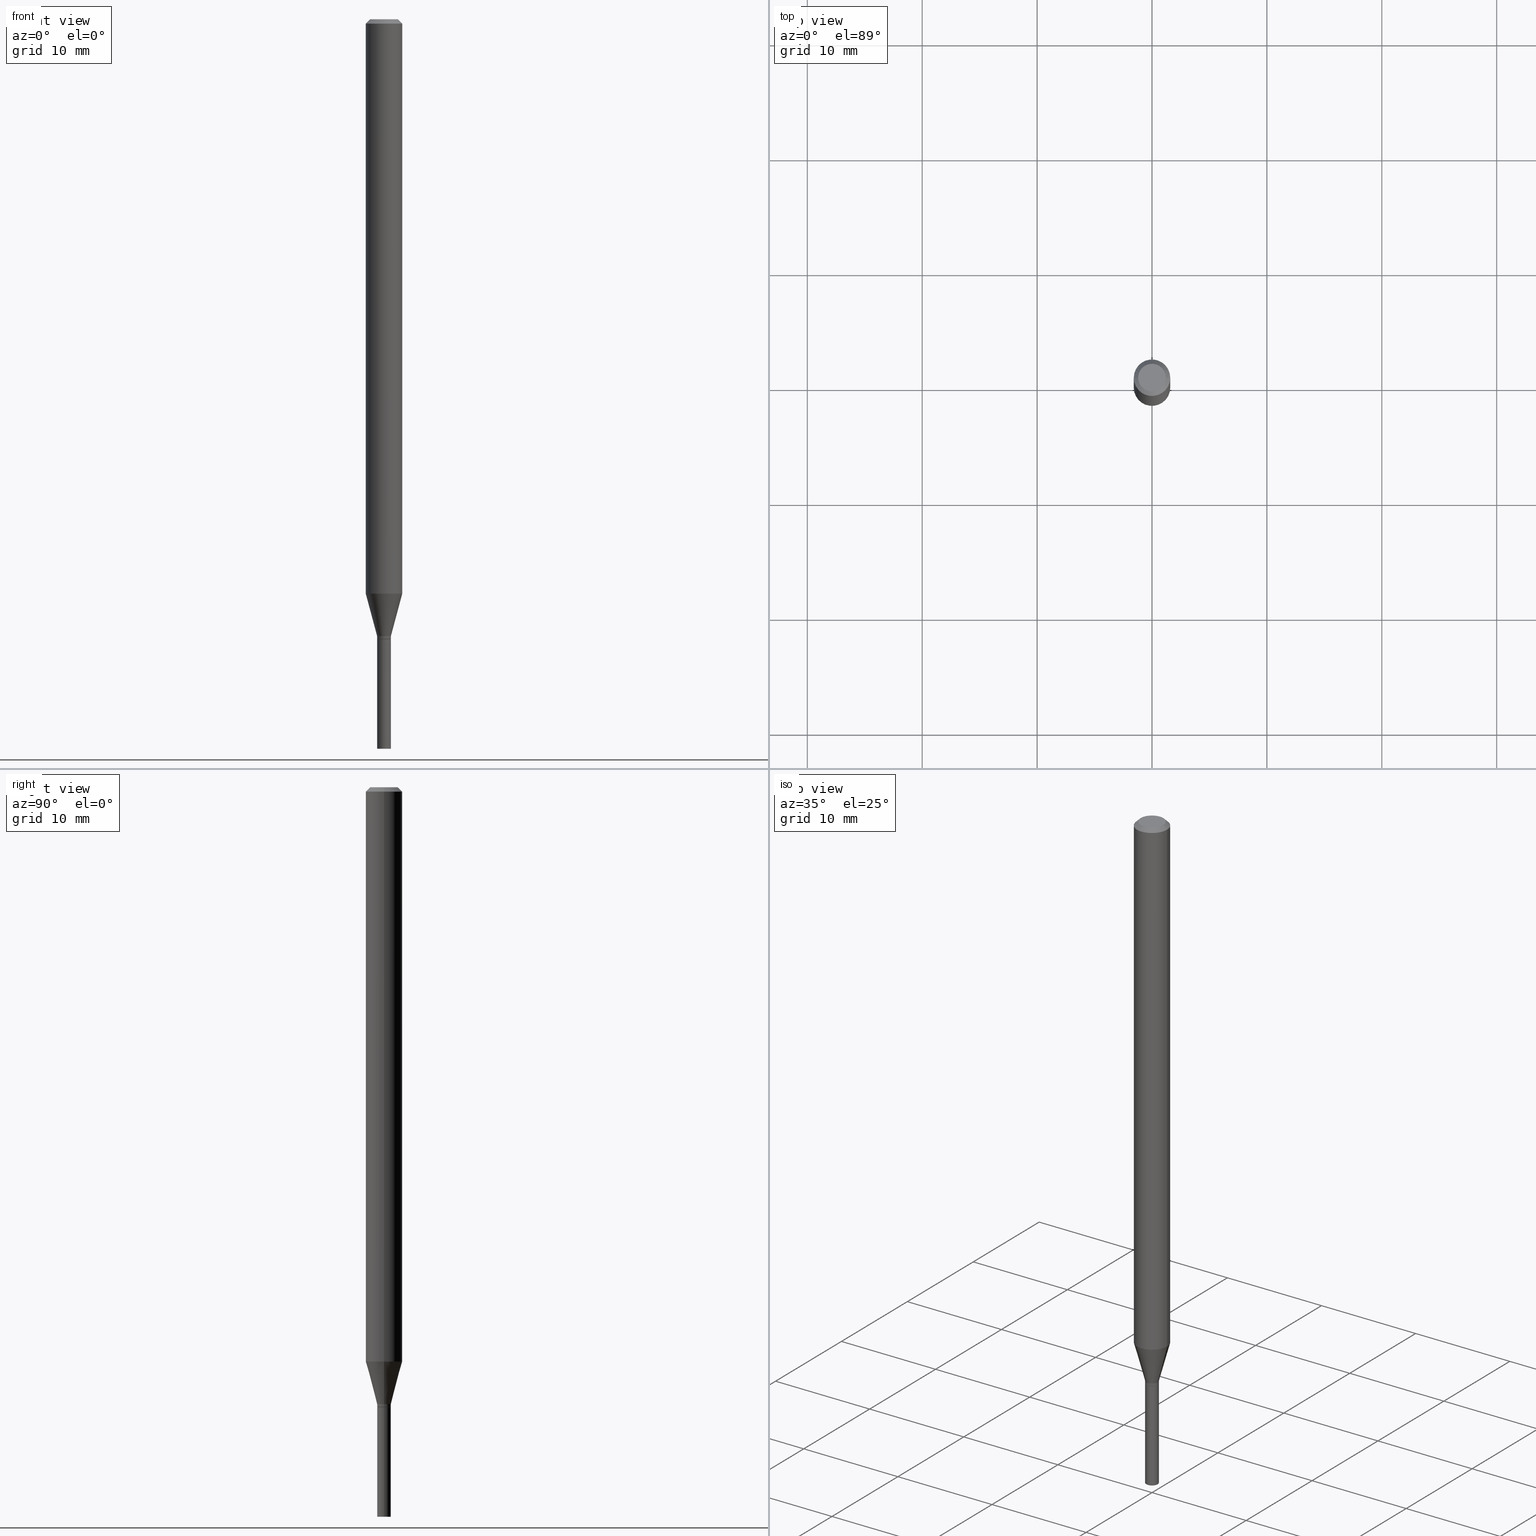
[diagram: canonical four-view strip — front | top / right | iso, engineering-drawing reading convention]
A machine part, canonical four-view strip (front | top / right | iso — engineering-drawing reading convention). The complete STEP part file that produces these views, byte-faithful:
ISO-10303-21;
HEADER;
FILE_DESCRIPTION (( 'STEP AP203' ),
    '1' );
FILE_NAME ('00620.STEP',
    '2024-03-19T22:06:02',
    ( '' ),
    ( '' ),
    'SwSTEP 2.0',
    'SolidWorks 2023',
    '' );
FILE_SCHEMA (( 'CONFIG_CONTROL_DESIGN' ));
ENDSEC;

DATA;
#1 = VERTEX_POINT ( 'NONE', #337 ) ;
#2 = ORIENTED_EDGE ( 'NONE', *, *, #364, .T. ) ;
#3 = PERSON_AND_ORGANIZATION_ROLE ( 'creator' ) ;
#4 = LENGTH_MEASURE_WITH_UNIT ( LENGTH_MEASURE( 0.02539999999999999897 ), #108 );
#5 = ORIENTED_EDGE ( 'NONE', *, *, #292, .T. ) ;
#6 = VERTEX_POINT ( 'NONE', #189 ) ;
#7 = DIRECTION ( 'NONE',  ( 1.000000000000000000, -6.982962677686247778E-15, 0.000000000000000000 ) ) ;
#8 = CIRCLE ( 'NONE', #387, 0.02299999999999999961 ) ;
#9 = APPROVAL_PERSON_ORGANIZATION ( #389, #35, #360 ) ;
#10 = DIRECTION ( 'NONE',  ( -2.445468806185136597E-29, 3.491481338843145583E-15, 1.000000000000000000 ) ) ;
#11 = DIRECTION ( 'NONE',  ( 1.000000000000000000, -6.982962677686267499E-15, 4.876176775795936353E-29 ) ) ;
#12 = DIRECTION ( 'NONE',  ( -2.445468806185136597E-29, 3.491481338843145583E-15, 1.000000000000000000 ) ) ;
#13 = EDGE_CURVE ( 'NONE', #1, #6, #350, .T. ) ;
#14 = AXIS2_PLACEMENT_3D ( 'NONE', #244, #352, #25 ) ;
#15 = AXIS2_PLACEMENT_3D ( 'NONE', #233, #340, #237 ) ;
#16 = DATE_AND_TIME ( #30, #179 ) ;
#17 = COORDINATED_UNIVERSAL_TIME_OFFSET ( 5, 0, .BEHIND. ) ;
#18 = COORDINATED_UNIVERSAL_TIME_OFFSET ( 5, 0, .BEHIND. ) ;
#19 = ORIENTED_EDGE ( 'NONE', *, *, #411, .T. ) ;
#20 = PERSON_AND_ORGANIZATION_ROLE ( 'classification_officer' ) ;
#21 = DIRECTION ( 'NONE',  ( -2.438088387897960049E-29, 3.491481338843145188E-15, 1.000000000000000000 ) ) ;
#22 = CC_DESIGN_PERSON_AND_ORGANIZATION_ASSIGNMENT ( #239, #373, ( #216 ) ) ;
#23 = ORIENTED_EDGE ( 'NONE', *, *, #13, .T. ) ;
#24 = ORIENTED_EDGE ( 'NONE', *, *, #222, .T. ) ;
#25 = DIRECTION ( 'NONE',  ( 1.000000000000000000, -6.982962677686265922E-15, 4.876176775795935793E-29 ) ) ;
#26 = DIRECTION ( 'NONE',  ( -0.7071067811865361374, 2.468850131082138337E-15, -0.7071067811865587860 ) ) ;
#27 = VERTEX_POINT ( 'NONE', #438 ) ;
#28 = DIRECTION ( 'NONE',  ( 1.000000000000000000, -6.982962677686253300E-15, 0.000000000000000000 ) ) ;
#29 = VERTEX_POINT ( 'NONE', #299 ) ;
#30 = CALENDAR_DATE ( 2024, 19, 3 ) ;
#31 = ORIENTED_EDGE ( 'NONE', *, *, #124, .F. ) ;
#32 = CIRCLE ( 'NONE', #90, 0.02350000000000000352 ) ;
#33 = DIRECTION ( 'NONE',  ( 2.438088387897960049E-29, -3.491481338843145188E-15, -1.000000000000000000 ) ) ;
#34 = DIRECTION ( 'NONE',  ( 1.000000000000000000, -6.982962677686269866E-15, 0.000000000000000000 ) ) ;
#35 = APPROVAL ( #265, 'UNSPECIFIED' ) ;
#36 = DIRECTION ( 'NONE',  ( -2.445468806185136597E-29, 3.491481338843145583E-15, 1.000000000000000000 ) ) ;
#37 = CARTESIAN_POINT ( 'NONE',  ( 0.02349999999999965311, -7.578260245959044393E-15, -2.123500000000000387 ) ) ;
#38 = ORIENTED_EDGE ( 'NONE', *, *, #96, .F. ) ;
#39 = DIRECTION ( 'NONE',  ( -2.445468806185136597E-29, 3.491481338843145583E-15, 1.000000000000000000 ) ) ;
#40 = EDGE_LOOP ( 'NONE', ( #31, #93, #227, #346 ) ) ;
#41 = APPROVAL_ROLE ( '' ) ;
#42 = CARTESIAN_POINT ( 'NONE',  ( 0.02350000000000019781, -7.545091173240038191E-15, -2.114000000000000323 ) ) ;
#43 = CYLINDRICAL_SURFACE ( 'NONE', #331, 0.02349999999999992373 ) ;
#44 = DIRECTION ( 'NONE',  ( 0.000000000000000000, 0.000000000000000000, 1.000000000000000000 ) ) ;
#45 = EDGE_CURVE ( 'NONE', #257, #303, #440, .T. ) ;
#46 = CARTESIAN_POINT ( 'NONE',  ( 5.194175744337230786E-29, -7.415906363702842194E-15, -2.124000000000000554 ) ) ;
#47 = AXIS2_PLACEMENT_3D ( 'NONE', #258, #388, #34 ) ;
#48 = DIRECTION ( 'NONE',  ( 0.2588190451025217942, 1.565188264969618812E-15, 0.9659258262890679791 ) ) ;
#49 = PRODUCT_DEFINITION ( 'UNKNOWN', '', #216, #313 ) ;
#50 = DIRECTION ( 'NONE',  ( 1.000000000000000000, -6.982962677686267499E-15, 4.852736867747366768E-29 ) ) ;
#51 = DIRECTION ( 'NONE',  ( -2.445468806185136597E-29, 3.491481338843145583E-15, 1.000000000000000000 ) ) ;
#52 = AXIS2_PLACEMENT_3D ( 'NONE', #116, #266, #366 ) ;
#53 = DIRECTION ( 'NONE',  ( 1.000000000000000000, -6.982962677686228056E-15, 0.000000000000000000 ) ) ;
#54 = APPROVAL_PERSON_ORGANIZATION ( #225, #193, #41 ) ;
#55 = LINE ( 'NONE', #162, #259 ) ;
#56 = EDGE_LOOP ( 'NONE', ( #84, #231, #310, #367 ) ) ;
#57 = EDGE_CURVE ( 'NONE', #163, #102, #321, .T. ) ;
#58 = CARTESIAN_POINT ( 'NONE',  ( 0.06250000000000000000, -4.888073874380388472E-16, -0.01499999999999999944 ) ) ;
#59 = ORIENTED_EDGE ( 'NONE', *, *, #264, .F. ) ;
#60 = DIRECTION ( 'NONE',  ( 1.000000000000000000, -6.982962677686265922E-15, 4.876176775795935793E-29 ) ) ;
#61 = VECTOR ( 'NONE', #268, 39.37007874015748143 ) ;
#62 = CARTESIAN_POINT ( 'NONE',  ( 5.194175744337230786E-29, -7.415906363702842194E-15, -2.124000000000000110 ) ) ;
#63 = EDGE_CURVE ( 'NONE', #29, #303, #273, .T. ) ;
#64 = CARTESIAN_POINT ( 'NONE',  ( 0.02349999999999992373, -1.640996229256267589E-16, 1.145901542312041261E-30 ) ) ;
#65 = FACE_OUTER_BOUND ( 'NONE', #40, .T. ) ;
#66 = CYLINDRICAL_SURFACE ( 'NONE', #203, 0.06250000000000000000 ) ;
#67 = AXIS2_PLACEMENT_3D ( 'NONE', #75, #109, #211 ) ;
#68 = CONICAL_SURFACE ( 'NONE', #15, 0.06250000000000000000, 0.7853981633974322918 ) ;
#69 = EDGE_CURVE ( 'NONE', #246, #235, #463, .T. ) ;
#70 = APPROVAL_STATUS ( 'not_yet_approved' ) ;
#71 = LINE ( 'NONE', #459, #355 ) ;
#72 = EDGE_LOOP ( 'NONE', ( #95, #324, #19, #294 ) ) ;
#73 = DIRECTION ( 'NONE',  ( 0.7071067811865361374, -7.319954787623216602E-15, -0.7071067811865587860 ) ) ;
#74 = CARTESIAN_POINT ( 'NONE',  ( -0.06250000000000000000, 4.440892098500626162E-16, -3.074334431409316114E-30 ) ) ;
#75 = CARTESIAN_POINT ( 'NONE',  ( 3.316907271900976096E-16, 0.04749999999999999362, 7.524325248980341519E-17 ) ) ;
#76 = CARTESIAN_POINT ( 'NONE',  ( 4.813783116788080428E-29, -6.872806506055007180E-15, -1.968450018504815269 ) ) ;
#77 = ADVANCED_FACE ( 'NONE', ( #82 ), #43, .T. ) ;
#78 = VERTEX_POINT ( 'NONE', #343 ) ;
#79 = CONICAL_SURFACE ( 'NONE', #134, 0.02299999999999999961, 0.7853981633969275844 ) ;
#80 = APPLICATION_CONTEXT ( 'configuration controlled 3d designs of mechanical parts and assemblies' ) ;
#81 = ADVANCED_FACE ( 'NONE', ( #375 ), #401, .T. ) ;
#82 = FACE_OUTER_BOUND ( 'NONE', #202, .T. ) ;
#83 =( CONVERSION_BASED_UNIT ( 'INCH', #4 ) LENGTH_UNIT ( ) NAMED_UNIT ( #152 ) );
#84 = ORIENTED_EDGE ( 'NONE', *, *, #286, .T. ) ;
#85 = VERTEX_POINT ( 'NONE', #192 ) ;
#86 = AXIS2_PLACEMENT_3D ( 'NONE', #186, #10, #28 ) ;
#87 = CARTESIAN_POINT ( 'NONE',  ( 3.668203209277705088E-31, -5.237222008264718399E-17, -0.01499999999999999944 ) ) ;
#88 = APPROVAL_DATE_TIME ( #16, #301 ) ;
#89 = DIRECTION ( 'NONE',  ( 1.000000000000000000, 0.000000000000000000, 0.000000000000000000 ) ) ;
#90 = AXIS2_PLACEMENT_3D ( 'NONE', #391, #36, #138 ) ;
#91 = CARTESIAN_POINT ( 'NONE',  ( 5.192953009934137985E-29, -7.414160623033419902E-15, -2.123500000000000387 ) ) ;
#92 = APPROVAL_DATE_TIME ( #415, #35 ) ;
#93 = ORIENTED_EDGE ( 'NONE', *, *, #160, .T. ) ;
#94 = CALENDAR_DATE ( 2024, 19, 3 ) ;
#95 = ORIENTED_EDGE ( 'NONE', *, *, #63, .F. ) ;
#96 = EDGE_CURVE ( 'NONE', #6, #1, #143, .T. ) ;
#97 = DIRECTION ( 'NONE',  ( -2.445468806185136597E-29, 3.491481338843145583E-15, 1.000000000000000000 ) ) ;
#98 = VECTOR ( 'NONE', #73, 39.37007874015748854 ) ;
#99 = ORIENTED_EDGE ( 'NONE', *, *, #13, .F. ) ;
#100 = ORIENTED_EDGE ( 'NONE', *, *, #250, .F. ) ;
#101 = DIRECTION ( 'NONE',  ( 1.000000000000000000, -6.982962677686267499E-15, 4.876176775795936353E-29 ) ) ;
#102 = VERTEX_POINT ( 'NONE', #58 ) ;
#103 = ORIENTED_EDGE ( 'NONE', *, *, #124, .T. ) ;
#104 = FACE_OUTER_BOUND ( 'NONE', #287, .T. ) ;
#105 = CIRCLE ( 'NONE', #285, 0.02350000000000000352 ) ;
#106 = ADVANCED_FACE ( 'NONE', ( #200 ), #153, .T. ) ;
#107 = DIRECTION ( 'NONE',  ( -1.000000000000000000, 6.982962677686265922E-15, -4.876176775795935793E-29 ) ) ;
#108 =( LENGTH_UNIT ( ) NAMED_UNIT ( * ) SI_UNIT ( $, .METRE. ) );
#109 = DIRECTION ( 'NONE',  ( 2.438088387897960049E-29, -3.491481338843145188E-15, -1.000000000000000000 ) ) ;
#110 = EDGE_LOOP ( 'NONE', ( #451, #453 ) ) ;
#111 = ORIENTED_EDGE ( 'NONE', *, *, #382, .T. ) ;
#112 = CC_DESIGN_DATE_AND_TIME_ASSIGNMENT ( #430, #135, ( #49 ) ) ;
#113 = FACE_OUTER_BOUND ( 'NONE', #260, .T. ) ;
#114 = CARTESIAN_POINT ( 'NONE',  ( -0.02350000000000019781, -7.214014007410784881E-15, -2.114000000000000323 ) ) ;
#115 = CIRCLE ( 'NONE', #434, 0.02349999999999965311 ) ;
#116 = CARTESIAN_POINT ( 'NONE',  ( 4.813783116788080428E-29, -6.872806506055007180E-15, -1.968450018504815269 ) ) ;
#117 = CC_DESIGN_PERSON_AND_ORGANIZATION_ASSIGNMENT ( #444, #20, ( #119 ) ) ;
#118 = CONICAL_SURFACE ( 'NONE', #381, 0.02299999999999999961, 0.7853981633969275844 ) ;
#119 = SECURITY_CLASSIFICATION ( '', '', #245 ) ;
#120 = DIRECTION ( 'NONE',  ( 1.000000000000000000, -6.982962677686253300E-15, 0.000000000000000000 ) ) ;
#121 =( NAMED_UNIT ( * ) SI_UNIT ( $, .STERADIAN. ) SOLID_ANGLE_UNIT ( ) );
#122 = CARTESIAN_POINT ( 'NONE',  ( 6.113672015462842613E-29, -8.728703347107864943E-15, -2.500000000000000000 ) ) ;
#123 = CARTESIAN_POINT ( 'NONE',  ( 5.194175744337230786E-29, -7.415906363702842194E-15, -2.124000000000000554 ) ) ;
#124 = EDGE_CURVE ( 'NONE', #303, #163, #281, .T. ) ;
#125 = PERSON_AND_ORGANIZATION ( #236, #414 ) ;
#126 = EDGE_LOOP ( 'NONE', ( #383, #111, #2, #433 ) ) ;
#127 = AXIS2_PLACEMENT_3D ( 'NONE', #460, #39, #137 ) ;
#128 = AXIS2_PLACEMENT_3D ( 'NONE', #314, #156, #120 ) ;
#129 = DIRECTION ( 'NONE',  ( 1.000000000000000000, -6.982962677686249356E-15, 0.000000000000000000 ) ) ;
#130 = ORIENTED_EDGE ( 'NONE', *, *, #222, .F. ) ;
#131 = DIRECTION ( 'NONE',  ( 1.000000000000000000, -6.982962677686265922E-15, 4.876176775795935793E-29 ) ) ;
#132 = ADVANCED_FACE ( 'NONE', ( #410 ), #118, .T. ) ;
#133 = CARTESIAN_POINT ( 'NONE',  ( 3.668203209277705088E-31, -5.237222008264718399E-17, -0.01499999999999999944 ) ) ;
#134 = AXIS2_PLACEMENT_3D ( 'NONE', #465, #399, #139 ) ;
#135 = DATE_TIME_ROLE ( 'creation_date' ) ;
#136 = ORIENTED_EDGE ( 'NONE', *, *, #69, .T. ) ;
#137 = DIRECTION ( 'NONE',  ( 1.000000000000000000, -6.982962677686265922E-15, 4.876176775795935793E-29 ) ) ;
#138 = DIRECTION ( 'NONE',  ( 1.000000000000000000, -6.982962677686228056E-15, 0.000000000000000000 ) ) ;
#139 = DIRECTION ( 'NONE',  ( 1.000000000000000000, -6.982962677686247778E-15, 0.000000000000000000 ) ) ;
#140 = EDGE_CURVE ( 'NONE', #257, #102, #395, .T. ) ;
#141 = CARTESIAN_POINT ( 'NONE',  ( 0.000000000000000000, 0.000000000000000000, 0.000000000000000000 ) ) ;
#142 = UNCERTAINTY_MEASURE_WITH_UNIT (LENGTH_MEASURE( 1.000000000000000082E-05 ), #83, 'distance_accuracy_value', 'NONE');
#143 = CIRCLE ( 'NONE', #408, 0.04749999999999999362 ) ;
#144 = LOCAL_TIME ( 18, 6, 2.000000000000000000, #436 ) ;
#145 = ORIENTED_EDGE ( 'NONE', *, *, #380, .T. ) ;
#146 = LINE ( 'NONE', #393, #98 ) ;
#147 = DIRECTION ( 'NONE',  ( 1.000000000000000000, -6.982962677686267499E-15, 4.852736867747366768E-29 ) ) ;
#148 = FACE_OUTER_BOUND ( 'NONE', #347, .T. ) ;
#149 = PRODUCT_RELATED_PRODUCT_CATEGORY ( 'detail', '', ( #210 ) ) ;
#150 = ORIENTED_EDGE ( 'NONE', *, *, #57, .T. ) ;
#151 = DIRECTION ( 'NONE',  ( -2.445468806185136597E-29, 3.491481338843145583E-15, 1.000000000000000000 ) ) ;
#152 = DIMENSIONAL_EXPONENTS ( 1.000000000000000000, 0.000000000000000000, 0.000000000000000000, 0.000000000000000000, 0.000000000000000000, 0.000000000000000000, 0.000000000000000000 ) ;
#153 = CONICAL_SURFACE ( 'NONE', #128, 0.02350000000000019781, 0.2617993877991505181 ) ;
#154 = AXIS2_PLACEMENT_3D ( 'NONE', #371, #44, #89 ) ;
#155 = EDGE_LOOP ( 'NONE', ( #136, #305, #247, #377 ) ) ;
#156 = DIRECTION ( 'NONE',  ( -2.445468806185136597E-29, 3.491481338843145583E-15, 1.000000000000000000 ) ) ;
#157 = DIRECTION ( 'NONE',  ( 1.000000000000000000, -6.982962677686249356E-15, 0.000000000000000000 ) ) ;
#158 = AXIS2_PLACEMENT_3D ( 'NONE', #206, #167, #316 ) ;
#159 = CIRCLE ( 'NONE', #455, 0.02350000000000019781 ) ;
#160 = EDGE_CURVE ( 'NONE', #303, #257, #194, .T. ) ;
#161 = CARTESIAN_POINT ( 'NONE',  ( 0.000000000000000000, 0.000000000000000000, 0.000000000000000000 ) ) ;
#162 = CARTESIAN_POINT ( 'NONE',  ( -0.06250000000000000000, 3.840629472727444916E-16, -0.01499999999999999944 ) ) ;
#163 = VERTEX_POINT ( 'NONE', #322 ) ;
#164 = VECTOR ( 'NONE', #48, 39.37007874015748143 ) ;
#165 = DIRECTION ( 'NONE',  ( -2.445468806185136597E-29, 3.491481338843145583E-15, 1.000000000000000000 ) ) ;
#166 = ORIENTED_EDGE ( 'NONE', *, *, #219, .T. ) ;
#167 = DIRECTION ( 'NONE',  ( -2.445468806185136597E-29, 3.491481338843145583E-15, 1.000000000000000000 ) ) ;
#168 = EDGE_CURVE ( 'NONE', #240, #421, #295, .T. ) ;
#169 = CARTESIAN_POINT ( 'NONE',  ( -0.06250000000000000000, -6.428717296204944564E-15, -1.968450018504815269 ) ) ;
#170 = AXIS2_PLACEMENT_3D ( 'NONE', #46, #187, #7 ) ;
#171 = DIRECTION ( 'NONE',  ( 1.000000000000000000, -6.982962677686266711E-15, 4.876176775795935793E-29 ) ) ;
#172 = ADVANCED_FACE ( 'NONE', ( #65 ), #221, .T. ) ;
#173 = DIRECTION ( 'NONE',  ( -2.445468806185136597E-29, 3.491481338843145583E-15, 1.000000000000000000 ) ) ;
#174 = CARTESIAN_POINT ( 'NONE',  ( -0.02299999999999999961, -7.249832307303909383E-15, -2.124000000000000554 ) ) ;
#175 = DIRECTION ( 'NONE',  ( -2.445468806185136597E-29, 3.491481338843145583E-15, 1.000000000000000000 ) ) ;
#176 = DIRECTION ( 'NONE',  ( -2.445468806185136877E-29, 3.491481338843145188E-15, 1.000000000000000000 ) ) ;
#177 = DIRECTION ( 'NONE',  ( -2.445468806185136877E-29, 3.491481338843145188E-15, 1.000000000000000000 ) ) ;
#178 = VECTOR ( 'NONE', #176, 39.37007874015748143 ) ;
#179 = LOCAL_TIME ( 18, 6, 2.000000000000000000, #354 ) ;
#180 = VERTEX_POINT ( 'NONE', #362 ) ;
#181 = DIRECTION ( 'NONE',  ( -2.445468806185136597E-29, 3.491481338843145583E-15, 1.000000000000000000 ) ) ;
#182 = EDGE_LOOP ( 'NONE', ( #100, #99, #328, #150 ) ) ;
#183 = CYLINDRICAL_SURFACE ( 'NONE', #226, 0.02350000000000000352 ) ;
#184 = LINE ( 'NONE', #406, #363 ) ;
#185 = AXIS2_PLACEMENT_3D ( 'NONE', #329, #462, #101 ) ;
#186 = CARTESIAN_POINT ( 'NONE',  ( 5.169721056275379241E-29, -7.380991550314410545E-15, -2.114000000000000323 ) ) ;
#187 = DIRECTION ( 'NONE',  ( -2.445468806185136597E-29, 3.491481338843145583E-15, 1.000000000000000000 ) ) ;
#188 = ADVANCED_FACE ( 'NONE', ( #424 ), #213, .T. ) ;
#189 = CARTESIAN_POINT ( 'NONE',  ( 0.04749999999999999362, -4.035134999187569748E-16, 4.821772321697081624E-16 ) ) ;
#190 = ADVANCED_FACE ( 'NONE', ( #148 ), #79, .T. ) ;
#191 = SHAPE_DEFINITION_REPRESENTATION ( #284, #327 ) ;
#192 = CARTESIAN_POINT ( 'NONE',  ( -0.02349999999999965311, -7.247183080129798971E-15, -2.123500000000000387 ) ) ;
#193 = APPROVAL ( #70, 'UNSPECIFIED' ) ;
#194 = CIRCLE ( 'NONE', #215, 0.06250000000000000000 ) ;
#195 = CC_DESIGN_APPROVAL ( #193, ( #49 ) ) ;
#196 = EDGE_LOOP ( 'NONE', ( #370, #145, #263, #130 ) ) ;
#197 = PERSON_AND_ORGANIZATION ( #236, #414 ) ;
#198 = ORIENTED_EDGE ( 'NONE', *, *, #140, .F. ) ;
#199 = EDGE_CURVE ( 'NONE', #85, #29, #288, .T. ) ;
#200 = FACE_OUTER_BOUND ( 'NONE', #72, .T. ) ;
#201 = ORIENTED_EDGE ( 'NONE', *, *, #278, .F. ) ;
#202 = EDGE_LOOP ( 'NONE', ( #445, #419, #208, #351 ) ) ;
#203 = AXIS2_PLACEMENT_3D ( 'NONE', #214, #173, #224 ) ;
#204 = FACE_OUTER_BOUND ( 'NONE', #317, .T. ) ;
#205 = PERSON_AND_ORGANIZATION ( #236, #414 ) ;
#206 = CARTESIAN_POINT ( 'NONE',  ( 5.169721056275379241E-29, -7.380991550314410545E-15, -2.114000000000000323 ) ) ;
#207 = DIRECTION ( 'NONE',  ( 1.000000000000000000, -6.982962677686266711E-15, 0.000000000000000000 ) ) ;
#208 = ORIENTED_EDGE ( 'NONE', *, *, #286, .F. ) ;
#209 = FACE_OUTER_BOUND ( 'NONE', #349, .T. ) ;
#210 = PRODUCT ( '00620', '00620', '', ( #277 ) ) ;
#211 = DIRECTION ( 'NONE',  ( -1.000000000000000000, 6.982962677686265922E-15, -4.876176775795935793E-29 ) ) ;
#212 = ADVANCED_FACE ( 'NONE', ( #104 ), #228, .F. ) ;
#213 = CYLINDRICAL_SURFACE ( 'NONE', #127, 0.02350000000000000352 ) ;
#214 = CARTESIAN_POINT ( 'NONE',  ( 0.000000000000000000, 0.000000000000000000, 0.000000000000000000 ) ) ;
#215 = AXIS2_PLACEMENT_3D ( 'NONE', #76, #181, #330 ) ;
#216 = PRODUCT_DEFINITION_FORMATION_WITH_SPECIFIED_SOURCE ( 'ANY', '', #210, .NOT_KNOWN. ) ;
#217 = DIRECTION ( 'NONE',  ( -2.445468806185136877E-29, 3.491481338843145188E-15, 1.000000000000000000 ) ) ;
#218 = CARTESIAN_POINT ( 'NONE',  ( -0.02350000000000000352, 1.669775429036235687E-16, -1.155949746209903035E-30 ) ) ;
#219 = EDGE_CURVE ( 'NONE', #27, #78, #458, .T. ) ;
#220 = ORIENTED_EDGE ( 'NONE', *, *, #45, .T. ) ;
#221 = CYLINDRICAL_SURFACE ( 'NONE', #344, 0.06250000000000000000 ) ;
#222 = EDGE_CURVE ( 'NONE', #78, #421, #267, .T. ) ;
#223 = AXIS2_PLACEMENT_3D ( 'NONE', #62, #450, #384 ) ;
#224 = DIRECTION ( 'NONE',  ( 1.000000000000000000, -6.982962677686266711E-15, 4.876176775795935793E-29 ) ) ;
#225 = PERSON_AND_ORGANIZATION ( #236, #414 ) ;
#226 = AXIS2_PLACEMENT_3D ( 'NONE', #161, #441, #60 ) ;
#227 = ORIENTED_EDGE ( 'NONE', *, *, #140, .T. ) ;
#228 = PLANE ( 'NONE',  #452 ) ;
#229 = ORIENTED_EDGE ( 'NONE', *, *, #250, .T. ) ;
#230 = DIRECTION ( 'NONE',  ( 1.000000000000000000, -6.982962677686253300E-15, 0.000000000000000000 ) ) ;
#231 = ORIENTED_EDGE ( 'NONE', *, *, #63, .T. ) ;
#232 = DIRECTION ( 'NONE',  ( -0.7071067811861793118, 7.493145998869024141E-15, 0.7071067811869157227 ) ) ;
#233 = CARTESIAN_POINT ( 'NONE',  ( 3.668203209277705088E-31, -5.237222008264718399E-17, -0.01499999999999999944 ) ) ;
#234 = VECTOR ( 'NONE', #429, 39.37007874015748143 ) ;
#235 = VERTEX_POINT ( 'NONE', #174 ) ;
#236 = PERSON ( 'UNSPECIFIED', 'UNSPECIFIED', 'UNSPECIFIED', ('UNSPECIFIED'), ('UNSPECIFIED'), ('UNSPECIFIED') ) ;
#237 = DIRECTION ( 'NONE',  ( -1.000000000000000000, 6.982962677686266711E-15, 0.000000000000000000 ) ) ;
#238 = ORIENTED_EDGE ( 'NONE', *, *, #320, .T. ) ;
#239 = PERSON_AND_ORGANIZATION ( #236, #414 ) ;
#240 = VERTEX_POINT ( 'NONE', #326 ) ;
#241 = CIRCLE ( 'NONE', #223, 0.02350000000000000352 ) ;
#242 = LOCAL_TIME ( 18, 6, 2.000000000000000000, #18 ) ;
#243 = DIRECTION ( 'NONE',  ( -1.000000000000000000, 6.982962677686266711E-15, 0.000000000000000000 ) ) ;
#244 = CARTESIAN_POINT ( 'NONE',  ( 6.198122052593289668E-29, -8.607766087339451973E-15, -2.500000000000000000 ) ) ;
#245 = SECURITY_CLASSIFICATION_LEVEL ( 'unclassified' ) ;
#246 = VERTEX_POINT ( 'NONE', #262 ) ;
#247 = ORIENTED_EDGE ( 'NONE', *, *, #254, .F. ) ;
#248 = PLANE ( 'NONE',  #14 ) ;
#249 = VECTOR ( 'NONE', #325, 39.37007874015748143 ) ;
#250 = EDGE_CURVE ( 'NONE', #6, #102, #146, .T. ) ;
#251 =( GEOMETRIC_REPRESENTATION_CONTEXT ( 3 ) GLOBAL_UNCERTAINTY_ASSIGNED_CONTEXT ( ( #142 ) ) GLOBAL_UNIT_ASSIGNED_CONTEXT ( ( #83, #443, #121 ) ) REPRESENTATION_CONTEXT ( 'NONE', 'WORKASPACE' ) );
#252 = VERTEX_POINT ( 'NONE', #37 ) ;
#253 = MANIFOLD_SOLID_BREP ( 'Body-Move/Copy2[1]', #369 ) ;
#254 = EDGE_CURVE ( 'NONE', #252, #85, #115, .T. ) ;
#255 = ORIENTED_EDGE ( 'NONE', *, *, #407, .T. ) ;
#256 = CARTESIAN_POINT ( 'NONE',  ( 0.02350000000000000352, -1.640996229256272766E-16, 1.145901542312045115E-30 ) ) ;
#257 = VERTEX_POINT ( 'NONE', #269 ) ;
#258 = CARTESIAN_POINT ( 'NONE',  ( 5.194175744337230786E-29, -7.415906363702842194E-15, -2.124000000000000110 ) ) ;
#259 = VECTOR ( 'NONE', #26, 39.37007874015748854 ) ;
#260 = EDGE_LOOP ( 'NONE', ( #5, #166, #201, #394 ) ) ;
#261 = CARTESIAN_POINT ( 'NONE',  ( 5.194175744337230786E-29, -7.415906363702842194E-15, -2.124000000000000554 ) ) ;
#262 = CARTESIAN_POINT ( 'NONE',  ( 0.02299999999999999961, -7.576514505289626833E-15, -2.124000000000000554 ) ) ;
#263 = ORIENTED_EDGE ( 'NONE', *, *, #168, .T. ) ;
#264 = EDGE_CURVE ( 'NONE', #235, #85, #184, .T. ) ;
#265 = APPROVAL_STATUS ( 'not_yet_approved' ) ;
#266 = DIRECTION ( 'NONE',  ( -2.445468806185136597E-29, 3.491481338843145583E-15, 1.000000000000000000 ) ) ;
#267 = CIRCLE ( 'NONE', #47, 0.02350000000000000352 ) ;
#268 = DIRECTION ( 'NONE',  ( -0.2588190451025217942, 5.211531920934552619E-15, 0.9659258262890679791 ) ) ;
#269 = CARTESIAN_POINT ( 'NONE',  ( 0.06250000000000000000, -7.309241673410397272E-15, -1.968450018504815269 ) ) ;
#270 = DATE_AND_TIME ( #378, #144 ) ;
#271 = EDGE_CURVE ( 'NONE', #1, #163, #55, .T. ) ;
#272 = EDGE_LOOP ( 'NONE', ( #23, #304 ) ) ;
#273 = LINE ( 'NONE', #114, #61 ) ;
#274 = DIRECTION ( 'NONE',  ( -2.445468806185136597E-29, 3.491481338843145583E-15, 1.000000000000000000 ) ) ;
#275 = CLOSED_SHELL ( 'NONE', ( #77, #132, #457, #442, #437, #106, #172, #81, #368, #397, #190, #338 ) ) ;
#276 = LOCAL_TIME ( 18, 6, 2.000000000000000000, #17 ) ;
#277 = MECHANICAL_CONTEXT ( 'NONE', #400, 'mechanical' ) ;
#278 = EDGE_CURVE ( 'NONE', #421, #78, #241, .T. ) ;
#279 = ADVANCED_FACE ( 'NONE', ( #283 ), #248, .F. ) ;
#280 = CALENDAR_DATE ( 2024, 19, 3 ) ;
#281 = LINE ( 'NONE', #74, #420 ) ;
#282 = ORIENTED_EDGE ( 'NONE', *, *, #382, .F. ) ;
#283 = FACE_OUTER_BOUND ( 'NONE', #110, .T. ) ;
#284 = PRODUCT_DEFINITION_SHAPE ( 'NONE', 'NONE',  #49 ) ;
#285 = AXIS2_PLACEMENT_3D ( 'NONE', #122, #372, #53 ) ;
#286 = EDGE_CURVE ( 'NONE', #180, #29, #427, .T. ) ;
#287 = EDGE_LOOP ( 'NONE', ( #404, #24 ) ) ;
#288 = LINE ( 'NONE', #300, #234 ) ;
#289 = FACE_OUTER_BOUND ( 'NONE', #126, .T. ) ;
#290 = DIRECTION ( 'NONE',  ( -2.445468806185136877E-29, 3.491481338843145188E-15, 1.000000000000000000 ) ) ;
#291 = PERSON_AND_ORGANIZATION_ROLE ( 'design_owner' ) ;
#292 = EDGE_CURVE ( 'NONE', #240, #27, #32, .T. ) ;
#293 = DIRECTION ( 'NONE',  ( 0.7071067811861793118, -2.468850131078399925E-15, 0.7071067811869157227 ) ) ;
#294 = ORIENTED_EDGE ( 'NONE', *, *, #160, .F. ) ;
#295 = LINE ( 'NONE', #256, #249 ) ;
#296 = CALENDAR_DATE ( 2024, 19, 3 ) ;
#297 = CARTESIAN_POINT ( 'NONE',  ( 5.192953009934137985E-29, -7.414160623033419902E-15, -2.123500000000000387 ) ) ;
#298 = FACE_OUTER_BOUND ( 'NONE', #379, .T. ) ;
#299 = CARTESIAN_POINT ( 'NONE',  ( -0.02350000000000019781, -6.821365651807865511E-15, -2.114000000000000323 ) ) ;
#300 = CARTESIAN_POINT ( 'NONE',  ( -0.02349999999999992373, 1.669775429036230017E-16, -1.155949746209899357E-30 ) ) ;
#301 = APPROVAL ( #418, 'UNSPECIFIED' ) ;
#302 = AXIS2_PLACEMENT_3D ( 'NONE', #87, #449, #243 ) ;
#303 = VERTEX_POINT ( 'NONE', #169 ) ;
#304 = ORIENTED_EDGE ( 'NONE', *, *, #96, .T. ) ;
#305 = ORIENTED_EDGE ( 'NONE', *, *, #264, .T. ) ;
#306 = VECTOR ( 'NONE', #290, 39.37007874015748143 ) ;
#307 = AXIS2_PLACEMENT_3D ( 'NONE', #348, #21, #131 ) ;
#308 = ORIENTED_EDGE ( 'NONE', *, *, #69, .F. ) ;
#309 = CARTESIAN_POINT ( 'NONE',  ( -1.179149380323703493E-44, 1.683512808135566071E-30, 4.821772321697055986E-16 ) ) ;
#310 = ORIENTED_EDGE ( 'NONE', *, *, #45, .F. ) ;
#311 = APPLICATION_PROTOCOL_DEFINITION ( 'international standard', 'config_control_design', 1994, #400 ) ;
#312 = CC_DESIGN_PERSON_AND_ORGANIZATION_ASSIGNMENT ( #396, #3, ( #49 ) ) ;
#313 = DESIGN_CONTEXT ( 'detailed design', #80, 'design' ) ;
#314 = CARTESIAN_POINT ( 'NONE',  ( 5.169721056275379241E-29, -7.380991550314410545E-15, -2.114000000000000323 ) ) ;
#315 = VECTOR ( 'NONE', #217, 39.37007874015748143 ) ;
#316 = DIRECTION ( 'NONE',  ( 1.000000000000000000, -6.982962677686253300E-15, 0.000000000000000000 ) ) ;
#317 = EDGE_LOOP ( 'NONE', ( #38, #229, #255, #318 ) ) ;
#318 = ORIENTED_EDGE ( 'NONE', *, *, #271, .F. ) ;
#319 = DIRECTION ( 'NONE',  ( 1.000000000000000000, -6.982962677686247778E-15, 0.000000000000000000 ) ) ;
#320 = EDGE_CURVE ( 'NONE', #246, #252, #71, .T. ) ;
#321 = CIRCLE ( 'NONE', #374, 0.06250000000000000000 ) ;
#322 = CARTESIAN_POINT ( 'NONE',  ( -0.06250000000000000000, -3.018500153218765105E-15, -0.01499999999999999944 ) ) ;
#323 = CC_DESIGN_SECURITY_CLASSIFICATION ( #119, ( #216 ) ) ;
#324 = ORIENTED_EDGE ( 'NONE', *, *, #417, .T. ) ;
#325 = DIRECTION ( 'NONE',  ( -2.445468806185136877E-29, 3.491481338843145188E-15, 1.000000000000000000 ) ) ;
#326 = CARTESIAN_POINT ( 'NONE',  ( 0.02350000000000000352, -8.892802970033491011E-15, -2.500000000000000000 ) ) ;
#327 = ADVANCED_BREP_SHAPE_REPRESENTATION ( '00620', ( #253, #403, #154 ), #251 ) ;
#328 = ORIENTED_EDGE ( 'NONE', *, *, #271, .T. ) ;
#329 = CARTESIAN_POINT ( 'NONE',  ( 0.000000000000000000, 0.000000000000000000, 0.000000000000000000 ) ) ;
#330 = DIRECTION ( 'NONE',  ( 1.000000000000000000, -6.982962677686262766E-15, 0.000000000000000000 ) ) ;
#331 = AXIS2_PLACEMENT_3D ( 'NONE', #341, #339, #11 ) ;
#332 = AXIS2_PLACEMENT_3D ( 'NONE', #91, #165, #129 ) ;
#333 = DATE_TIME_ROLE ( 'classification_date' ) ;
#334 = EDGE_CURVE ( 'NONE', #235, #246, #8, .T. ) ;
#335 = DIRECTION ( 'NONE',  ( -2.445468806185136597E-29, 3.491481338843145583E-15, 1.000000000000000000 ) ) ;
#336 = CARTESIAN_POINT ( 'NONE',  ( 0.06250000000000000000, -4.364351673553916694E-16, 3.047610484872459871E-30 ) ) ;
#337 = CARTESIAN_POINT ( 'NONE',  ( -0.04749999999999999362, 3.578768372314218888E-16, 4.821772321697032320E-16 ) ) ;
#338 = ADVANCED_FACE ( 'NONE', ( #289 ), #454, .T. ) ;
#339 = DIRECTION ( 'NONE',  ( -2.445468806185136597E-29, 3.491481338843145583E-15, 1.000000000000000000 ) ) ;
#340 = DIRECTION ( 'NONE',  ( 2.445468806185136597E-29, -3.491481338843145583E-15, -1.000000000000000000 ) ) ;
#341 = CARTESIAN_POINT ( 'NONE',  ( 0.000000000000000000, 0.000000000000000000, 0.000000000000000000 ) ) ;
#342 = CARTESIAN_POINT ( 'NONE',  ( 5.169721056275379241E-29, -7.380991550314410545E-15, -2.114000000000000323 ) ) ;
#343 = CARTESIAN_POINT ( 'NONE',  ( -0.02350000000000000352, -7.905327312501728693E-15, -2.124000000000000110 ) ) ;
#344 = AXIS2_PLACEMENT_3D ( 'NONE', #141, #456, #171 ) ;
#345 = CARTESIAN_POINT ( 'NONE',  ( 0.02350000000000000352, -7.580005986628469840E-15, -2.124000000000000110 ) ) ;
#346 = ORIENTED_EDGE ( 'NONE', *, *, #57, .F. ) ;
#347 = EDGE_LOOP ( 'NONE', ( #59, #426, #238, #282 ) ) ;
#348 = CARTESIAN_POINT ( 'NONE',  ( 5.194175744337230786E-29, -7.415906363702842194E-15, -2.124000000000000110 ) ) ;
#349 = EDGE_LOOP ( 'NONE', ( #308, #390 ) ) ;
#350 = CIRCLE ( 'NONE', #446, 0.04749999999999999362 ) ;
#351 = ORIENTED_EDGE ( 'NONE', *, *, #364, .F. ) ;
#352 = DIRECTION ( 'NONE',  ( -2.438088387897960049E-29, 3.491481338843145188E-15, 1.000000000000000000 ) ) ;
#353 = CONICAL_SURFACE ( 'NONE', #86, 0.02350000000000019781, 0.2617993877991505181 ) ;
#354 = COORDINATED_UNIVERSAL_TIME_OFFSET ( 5, 0, .BEHIND. ) ;
#355 = VECTOR ( 'NONE', #293, 39.37007874015748143 ) ;
#356 = CARTESIAN_POINT ( 'NONE',  ( 1.640996229256792181E-16, 0.02349999999999258932, -2.124000000000000110 ) ) ;
#357 = AXIS2_PLACEMENT_3D ( 'NONE', #133, #97, #207 ) ;
#358 = FACE_OUTER_BOUND ( 'NONE', #272, .T. ) ;
#359 = CC_DESIGN_PERSON_AND_ORGANIZATION_ASSIGNMENT ( #125, #439, ( #216 ) ) ;
#360 = APPROVAL_ROLE ( '' ) ;
#361 = CARTESIAN_POINT ( 'NONE',  ( -1.179149380323703493E-44, 1.683512808135566071E-30, 4.821772321697055986E-16 ) ) ;
#362 = CARTESIAN_POINT ( 'NONE',  ( 0.02350000000000019781, -7.545091173240038191E-15, -2.114000000000000323 ) ) ;
#363 = VECTOR ( 'NONE', #232, 39.37007874015748143 ) ;
#364 = EDGE_CURVE ( 'NONE', #252, #180, #386, .T. ) ;
#365 = DIRECTION ( 'NONE',  ( -2.445468806185136597E-29, 3.491481338843145583E-15, 1.000000000000000000 ) ) ;
#366 = DIRECTION ( 'NONE',  ( 1.000000000000000000, -6.982962677686262766E-15, 0.000000000000000000 ) ) ;
#367 = ORIENTED_EDGE ( 'NONE', *, *, #411, .F. ) ;
#368 = ADVANCED_FACE ( 'NONE', ( #358 ), #431, .F. ) ;
#369 = CLOSED_SHELL ( 'NONE', ( #448, #279, #188, #212 ) ) ;
#370 = ORIENTED_EDGE ( 'NONE', *, *, #219, .F. ) ;
#371 = CARTESIAN_POINT ( 'NONE',  ( 0.000000000000000000, 0.000000000000000000, 0.000000000000000000 ) ) ;
#372 = DIRECTION ( 'NONE',  ( -2.445468806185136597E-29, 3.491481338843145583E-15, 1.000000000000000000 ) ) ;
#373 = PERSON_AND_ORGANIZATION_ROLE ( 'creator' ) ;
#374 = AXIS2_PLACEMENT_3D ( 'NONE', #398, #151, #405 ) ;
#375 = FACE_OUTER_BOUND ( 'NONE', #182, .T. ) ;
#376 = CC_DESIGN_PERSON_AND_ORGANIZATION_ASSIGNMENT ( #197, #291, ( #210 ) ) ;
#377 = ORIENTED_EDGE ( 'NONE', *, *, #320, .F. ) ;
#378 = CALENDAR_DATE ( 2024, 19, 3 ) ;
#379 = EDGE_LOOP ( 'NONE', ( #220, #103, #392, #198 ) ) ;
#380 = EDGE_CURVE ( 'NONE', #27, #240, #105, .T. ) ;
#381 = AXIS2_PLACEMENT_3D ( 'NONE', #123, #365, #432 ) ;
#382 = EDGE_CURVE ( 'NONE', #85, #252, #422, .T. ) ;
#383 = ORIENTED_EDGE ( 'NONE', *, *, #199, .F. ) ;
#384 = DIRECTION ( 'NONE',  ( 1.000000000000000000, -6.982962677686269866E-15, 0.000000000000000000 ) ) ;
#385 = APPROVAL_ROLE ( '' ) ;
#386 = LINE ( 'NONE', #64, #315 ) ;
#387 = AXIS2_PLACEMENT_3D ( 'NONE', #261, #175, #319 ) ;
#388 = DIRECTION ( 'NONE',  ( -2.445468806185136597E-29, 3.491481338843145583E-15, 1.000000000000000000 ) ) ;
#389 = PERSON_AND_ORGANIZATION ( #236, #414 ) ;
#390 = ORIENTED_EDGE ( 'NONE', *, *, #334, .F. ) ;
#391 = CARTESIAN_POINT ( 'NONE',  ( 6.113672015462842613E-29, -8.728703347107864943E-15, -2.500000000000000000 ) ) ;
#392 = ORIENTED_EDGE ( 'NONE', *, *, #407, .F. ) ;
#393 = CARTESIAN_POINT ( 'NONE',  ( 0.06250000000000000000, -4.811533449433679005E-16, -0.01499999999999999944 ) ) ;
#394 = ORIENTED_EDGE ( 'NONE', *, *, #168, .F. ) ;
#395 = LINE ( 'NONE', #336, #178 ) ;
#396 = PERSON_AND_ORGANIZATION ( #236, #414 ) ;
#397 = ADVANCED_FACE ( 'NONE', ( #209 ), #416, .F. ) ;
#398 = CARTESIAN_POINT ( 'NONE',  ( 3.668203209277705088E-31, -5.237222008264718399E-17, -0.01499999999999999944 ) ) ;
#399 = DIRECTION ( 'NONE',  ( -2.445468806185136597E-29, 3.491481338843145583E-15, 1.000000000000000000 ) ) ;
#400 = APPLICATION_CONTEXT ( 'configuration controlled 3d designs of mechanical parts and assemblies' ) ;
#401 = CONICAL_SURFACE ( 'NONE', #302, 0.06250000000000000000, 0.7853981633974322918 ) ;
#402 = LINE ( 'NONE', #42, #164 ) ;
#403 = MANIFOLD_SOLID_BREP ( 'Body-Move/Copy2[2]', #275 ) ;
#404 = ORIENTED_EDGE ( 'NONE', *, *, #278, .T. ) ;
#405 = DIRECTION ( 'NONE',  ( 1.000000000000000000, -6.982962677686266711E-15, 0.000000000000000000 ) ) ;
#406 = CARTESIAN_POINT ( 'NONE',  ( -0.02299999999999999961, -7.252481534478019795E-15, -2.124000000000000554 ) ) ;
#407 = EDGE_CURVE ( 'NONE', #102, #163, #435, .T. ) ;
#408 = AXIS2_PLACEMENT_3D ( 'NONE', #309, #12, #50 ) ;
#409 = CC_DESIGN_APPROVAL ( #301, ( #216 ) ) ;
#410 = FACE_OUTER_BOUND ( 'NONE', #155, .T. ) ;
#411 = EDGE_CURVE ( 'NONE', #180, #257, #402, .T. ) ;
#412 = FACE_OUTER_BOUND ( 'NONE', #56, .T. ) ;
#413 = DATE_AND_TIME ( #280, #242 ) ;
#414 = ORGANIZATION ( 'UNSPECIFIED', 'UNSPECIFIED', '' ) ;
#415 = DATE_AND_TIME ( #94, #276 ) ;
#416 = PLANE ( 'NONE',  #307 ) ;
#417 = EDGE_CURVE ( 'NONE', #29, #180, #159, .T. ) ;
#418 = APPROVAL_STATUS ( 'not_yet_approved' ) ;
#419 = ORIENTED_EDGE ( 'NONE', *, *, #199, .T. ) ;
#420 = VECTOR ( 'NONE', #177, 39.37007874015748143 ) ;
#421 = VERTEX_POINT ( 'NONE', #345 ) ;
#422 = CIRCLE ( 'NONE', #332, 0.02349999999999965311 ) ;
#423 = CC_DESIGN_DATE_AND_TIME_ASSIGNMENT ( #413, #333, ( #119 ) ) ;
#424 = FACE_OUTER_BOUND ( 'NONE', #196, .T. ) ;
#425 = APPLICATION_PROTOCOL_DEFINITION ( 'international standard', 'config_control_design', 1994, #80 ) ;
#426 = ORIENTED_EDGE ( 'NONE', *, *, #334, .T. ) ;
#427 = CIRCLE ( 'NONE', #158, 0.02350000000000019781 ) ;
#428 = CC_DESIGN_APPROVAL ( #35, ( #119 ) ) ;
#429 = DIRECTION ( 'NONE',  ( -2.445468806185136877E-29, 3.491481338843145188E-15, 1.000000000000000000 ) ) ;
#430 = DATE_AND_TIME ( #296, #447 ) ;
#431 = PLANE ( 'NONE',  #67 ) ;
#432 = DIRECTION ( 'NONE',  ( 1.000000000000000000, -6.982962677686247778E-15, 0.000000000000000000 ) ) ;
#433 = ORIENTED_EDGE ( 'NONE', *, *, #417, .F. ) ;
#434 = AXIS2_PLACEMENT_3D ( 'NONE', #297, #274, #157 ) ;
#435 = CIRCLE ( 'NONE', #357, 0.06250000000000000000 ) ;
#436 = COORDINATED_UNIVERSAL_TIME_OFFSET ( 5, 0, .BEHIND. ) ;
#437 = ADVANCED_FACE ( 'NONE', ( #412 ), #353, .T. ) ;
#438 = CARTESIAN_POINT ( 'NONE',  ( -0.02350000000000000352, -7.905327312501728693E-15, -2.500000000000000000 ) ) ;
#439 = PERSON_AND_ORGANIZATION_ROLE ( 'design_supplier' ) ;
#440 = CIRCLE ( 'NONE', #52, 0.06250000000000000000 ) ;
#441 = DIRECTION ( 'NONE',  ( -2.445468806185136597E-29, 3.491481338843145583E-15, 1.000000000000000000 ) ) ;
#442 = ADVANCED_FACE ( 'NONE', ( #298 ), #66, .T. ) ;
#443 =( NAMED_UNIT ( * ) PLANE_ANGLE_UNIT ( ) SI_UNIT ( $, .RADIAN. ) );
#444 = PERSON_AND_ORGANIZATION ( #236, #414 ) ;
#445 = ORIENTED_EDGE ( 'NONE', *, *, #254, .T. ) ;
#446 = AXIS2_PLACEMENT_3D ( 'NONE', #361, #335, #147 ) ;
#447 = LOCAL_TIME ( 18, 6, 2.000000000000000000, #461 ) ;
#448 = ADVANCED_FACE ( 'NONE', ( #113 ), #183, .T. ) ;
#449 = DIRECTION ( 'NONE',  ( 2.445468806185136597E-29, -3.491481338843145583E-15, -1.000000000000000000 ) ) ;
#450 = DIRECTION ( 'NONE',  ( -2.445468806185136597E-29, 3.491481338843145583E-15, 1.000000000000000000 ) ) ;
#451 = ORIENTED_EDGE ( 'NONE', *, *, #292, .F. ) ;
#452 = AXIS2_PLACEMENT_3D ( 'NONE', #356, #33, #107 ) ;
#453 = ORIENTED_EDGE ( 'NONE', *, *, #380, .F. ) ;
#454 = CYLINDRICAL_SURFACE ( 'NONE', #185, 0.02349999999999992373 ) ;
#455 = AXIS2_PLACEMENT_3D ( 'NONE', #342, #51, #230 ) ;
#456 = DIRECTION ( 'NONE',  ( -2.445468806185136597E-29, 3.491481338843145583E-15, 1.000000000000000000 ) ) ;
#457 = ADVANCED_FACE ( 'NONE', ( #204 ), #68, .T. ) ;
#458 = LINE ( 'NONE', #218, #306 ) ;
#459 = CARTESIAN_POINT ( 'NONE',  ( 0.02299999999999999961, -7.576514505289626833E-15, -2.124000000000000554 ) ) ;
#460 = CARTESIAN_POINT ( 'NONE',  ( 0.000000000000000000, 0.000000000000000000, 0.000000000000000000 ) ) ;
#461 = COORDINATED_UNIVERSAL_TIME_OFFSET ( 5, 0, .BEHIND. ) ;
#462 = DIRECTION ( 'NONE',  ( -2.445468806185136597E-29, 3.491481338843145583E-15, 1.000000000000000000 ) ) ;
#463 = CIRCLE ( 'NONE', #170, 0.02299999999999999961 ) ;
#464 = APPROVAL_PERSON_ORGANIZATION ( #205, #301, #385 ) ;
#465 = CARTESIAN_POINT ( 'NONE',  ( 5.194175744337230786E-29, -7.415906363702842194E-15, -2.124000000000000554 ) ) ;
#466 = APPROVAL_DATE_TIME ( #270, #193 ) ;
ENDSEC;
END-ISO-10303-21;
